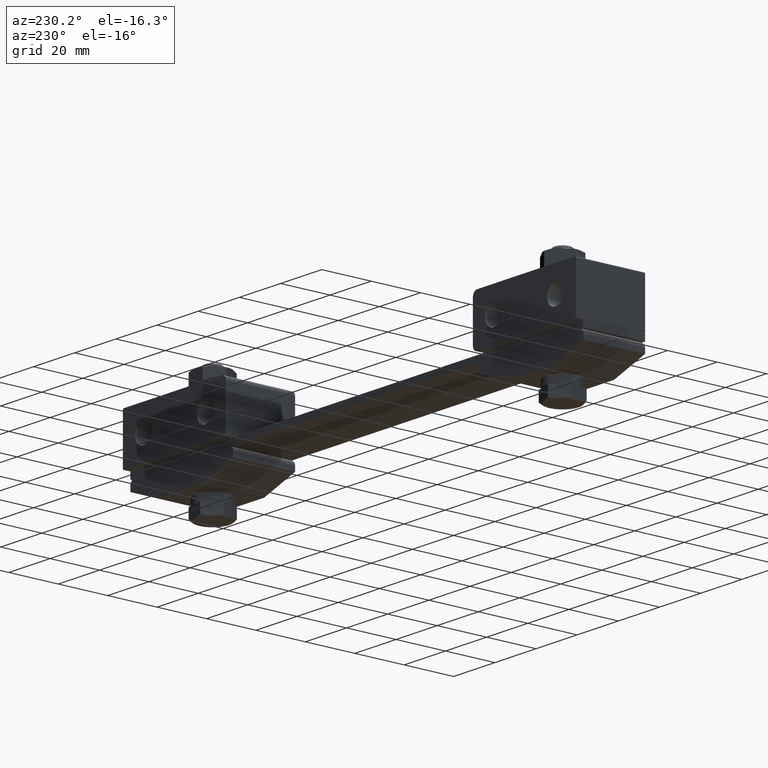
[diagram: clean part render]
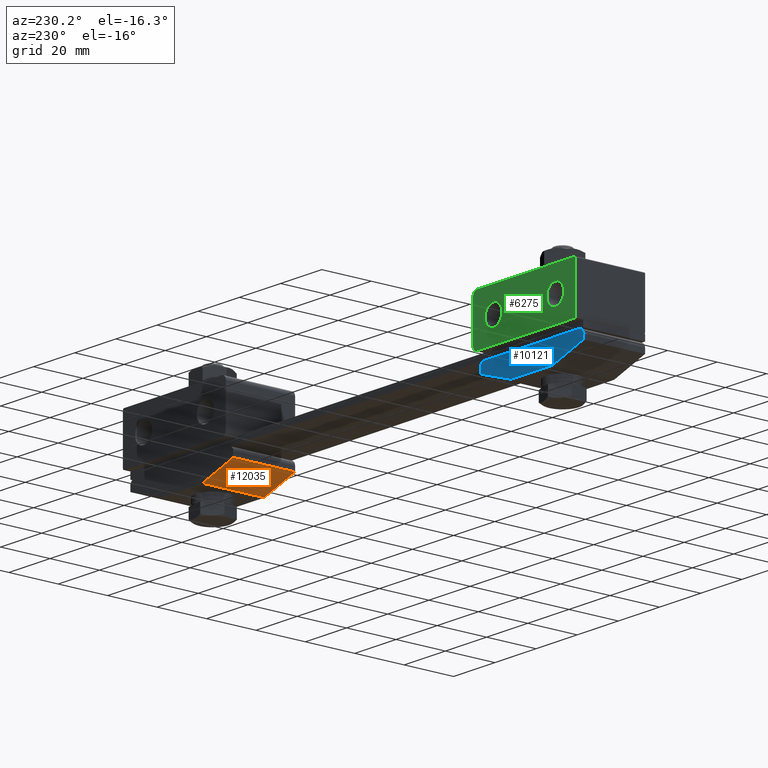
[diagram: same view with three faces highlighted in distinct colors, each labeled with its STEP entity id]
A machine part, auxiliary view with three faces highlighted in distinct colors.
Their STEP definitions:

[orange] entity #12035 — the highlighted planar face has unit normal (0.3162, 0, 0.9487).
#771 = VERTEX_POINT ( 'NONE', #1650 ) ;
#798 = CARTESIAN_POINT ( 'NONE',  ( 60.00000000000000000, -12.50000000000000000, -4.000000000000000000 ) ) ;
#914 = VECTOR ( 'NONE', #7214, 999.9999999999998900 ) ;
#1408 = PLANE ( 'NONE',  #8051 ) ;
#1477 = CARTESIAN_POINT ( 'NONE',  ( 75.00000000000000000, -14.00000000000000000, -9.000000000000000000 ) ) ;
#1650 = CARTESIAN_POINT ( 'NONE',  ( 60.00000000000000000, 12.50000000000000000, -4.000000000000000000 ) ) ;
#2160 = DIRECTION ( 'NONE',  ( 0.0000000000000000000, 1.000000000000000000, 0.0000000000000000000 ) ) ;
#2979 = DIRECTION ( 'NONE',  ( 0.9486832980505138800, 0.0000000000000000000, -0.3162277660168380000 ) ) ;
#3636 = EDGE_CURVE ( 'NONE', #9790, #14018, #14854, .T. ) ;
#3660 = DIRECTION ( 'NONE',  ( 0.0000000000000000000, 1.000000000000000000, 0.0000000000000000000 ) ) ;
#4072 = DIRECTION ( 'NONE',  ( -0.9486832980505137700, 0.0000000000000000000, 0.3162277660168380000 ) ) ;
#5417 = CARTESIAN_POINT ( 'NONE',  ( 75.00000000000000000, -12.50000000000000000, -9.000000000000000000 ) ) ;
#5857 = VECTOR ( 'NONE', #3660, 1000.000000000000000 ) ;
#7214 = DIRECTION ( 'NONE',  ( 0.9486832980505137700, 0.0000000000000000000, -0.3162277660168380000 ) ) ;
#7246 = ORIENTED_EDGE ( 'NONE', *, *, #13787, .F. ) ;
#7907 = EDGE_CURVE ( 'NONE', #8012, #771, #14209, .T. ) ;
#8012 = VERTEX_POINT ( 'NONE', #798 ) ;
#8051 = AXIS2_PLACEMENT_3D ( 'NONE', #1477, #18767, #2979 ) ;
#8525 = CARTESIAN_POINT ( 'NONE',  ( 58.79999999999999700, 12.50000000000000000, -3.600000000000000100 ) ) ;
#9790 = VERTEX_POINT ( 'NONE', #10771 ) ;
#10771 = CARTESIAN_POINT ( 'NONE',  ( 75.00000000000000000, -12.50000000000000000, -9.000000000000000000 ) ) ;
#11459 = CARTESIAN_POINT ( 'NONE',  ( 60.00000000000000000, -14.00000000000000000, -4.000000000000000000 ) ) ;
#11676 = EDGE_LOOP ( 'NONE', ( #18672, #13573, #15158, #7246 ) ) ;
#12035 = ADVANCED_FACE ( 'NONE', ( #13690 ), #1408, .F. ) ;
#12063 = LINE ( 'NONE', #8525, #13770 ) ;
#13556 = CARTESIAN_POINT ( 'NONE',  ( 58.79999999999999700, -12.50000000000000000, -3.600000000000000100 ) ) ;
#13573 = ORIENTED_EDGE ( 'NONE', *, *, #15281, .F. ) ;
#13690 = FACE_OUTER_BOUND ( 'NONE', #11676, .T. ) ;
#13770 = VECTOR ( 'NONE', #4072, 999.9999999999998900 ) ;
#13787 = EDGE_CURVE ( 'NONE', #8012, #9790, #16294, .T. ) ;
#14018 = VERTEX_POINT ( 'NONE', #17323 ) ;
#14209 = LINE ( 'NONE', #11459, #5857 ) ;
#14854 = LINE ( 'NONE', #5417, #15340 ) ;
#15158 = ORIENTED_EDGE ( 'NONE', *, *, #3636, .F. ) ;
#15281 = EDGE_CURVE ( 'NONE', #14018, #771, #12063, .T. ) ;
#15340 = VECTOR ( 'NONE', #2160, 1000.000000000000000 ) ;
#16294 = LINE ( 'NONE', #13556, #914 ) ;
#17323 = CARTESIAN_POINT ( 'NONE',  ( 75.00000000000000000, 12.50000000000000000, -9.000000000000000000 ) ) ;
#18672 = ORIENTED_EDGE ( 'NONE', *, *, #7907, .T. ) ;
#18767 = DIRECTION ( 'NONE',  ( 0.3162277660168380000, 0.0000000000000000000, 0.9486832980505138800 ) ) ;

[blue] entity #10121 — the highlighted planar face has unit normal (0, -1, 0).
#11 = CARTESIAN_POINT ( 'NONE',  ( -110.0000000000000000, 12.50000000000000000, -9.000000000000000000 ) ) ;
#200 = LINE ( 'NONE', #10910, #7428 ) ;
#311 = CARTESIAN_POINT ( 'NONE',  ( -110.0000000000000000, 12.50000000000000000, 0.0000000000000000000 ) ) ;
#519 = CARTESIAN_POINT ( 'NONE',  ( -110.0000000000000000, 12.50000000000000000, -4.000000000000000000 ) ) ;
#741 = ORIENTED_EDGE ( 'NONE', *, *, #3128, .F. ) ;
#1005 = DIRECTION ( 'NONE',  ( 0.0000000000000000000, 0.0000000000000000000, -1.000000000000000000 ) ) ;
#2238 = EDGE_CURVE ( 'NONE', #15018, #8568, #12202, .T. ) ;
#2322 = ORIENTED_EDGE ( 'NONE', *, *, #19930, .T. ) ;
#2412 = CARTESIAN_POINT ( 'NONE',  ( -95.00000000000000000, 12.50000000000000000, -9.000000000000000000 ) ) ;
#2477 = ORIENTED_EDGE ( 'NONE', *, *, #16836, .F. ) ;
#2694 = CARTESIAN_POINT ( 'NONE',  ( -110.0000000000000000, 12.50000000000000000, 0.0000000000000000000 ) ) ;
#2743 = CARTESIAN_POINT ( 'NONE',  ( -60.00000000000000000, 12.50000000000000000, -4.000000000000000000 ) ) ;
#2826 = VERTEX_POINT ( 'NONE', #2412 ) ;
#3097 = DIRECTION ( 'NONE',  ( -0.9486832980505137700, 0.0000000000000000000, 0.3162277660168380000 ) ) ;
#3128 = EDGE_CURVE ( 'NONE', #11429, #19155, #19283, .T. ) ;
#3638 = CIRCLE ( 'NONE', #17883, 2.000000000000000000 ) ;
#3933 = CARTESIAN_POINT ( 'NONE',  ( -75.00000000000000000, 12.50000000000000000, -9.000000000000000000 ) ) ;
#4467 = EDGE_CURVE ( 'NONE', #2826, #19155, #200, .T. ) ;
#5245 = CIRCLE ( 'NONE', #16768, 2.000000000000000000 ) ;
#5390 = CARTESIAN_POINT ( 'NONE',  ( -108.0000000000000000, 12.50000000000000000, 0.0000000000000000000 ) ) ;
#5635 = DIRECTION ( 'NONE',  ( 0.0000000000000000000, 0.0000000000000000000, -1.000000000000000000 ) ) ;
#6249 = VECTOR ( 'NONE', #1005, 1000.000000000000000 ) ;
#6274 = CARTESIAN_POINT ( 'NONE',  ( -60.00000000000000000, 12.50000000000000000, -2.000000000000000000 ) ) ;
#6990 = CARTESIAN_POINT ( 'NONE',  ( -108.0000000000000000, 12.50000000000000000, -2.000000000000000000 ) ) ;
#7334 = VECTOR ( 'NONE', #17625, 999.9999999999998900 ) ;
#7428 = VECTOR ( 'NONE', #3097, 999.9999999999998900 ) ;
#7720 = EDGE_CURVE ( 'NONE', #19825, #2826, #9770, .T. ) ;
#7747 = CARTESIAN_POINT ( 'NONE',  ( -110.0000000000000000, 12.50000000000000000, -2.000000000000000000 ) ) ;
#8088 = EDGE_CURVE ( 'NONE', #11429, #10280, #3638, .T. ) ;
#8568 = VERTEX_POINT ( 'NONE', #2743 ) ;
#8781 = DIRECTION ( 'NONE',  ( -0.0000000000000000000, 1.000000000000000000, -0.0000000000000000000 ) ) ;
#9286 = EDGE_LOOP ( 'NONE', ( #2477, #2322, #14366, #10932, #16230, #12239, #741, #19700 ) ) ;
#9300 = LINE ( 'NONE', #17754, #7334 ) ;
#9720 = VECTOR ( 'NONE', #20144, 1000.000000000000000 ) ;
#9770 = LINE ( 'NONE', #11, #20095 ) ;
#10121 = ADVANCED_FACE ( 'NONE', ( #14750 ), #16694, .F. ) ;
#10280 = VERTEX_POINT ( 'NONE', #5390 ) ;
#10322 = EDGE_CURVE ( 'NONE', #8568, #19825, #9300, .T. ) ;
#10329 = CARTESIAN_POINT ( 'NONE',  ( -62.00000000000000000, 12.50000000000000000, 0.0000000000000000000 ) ) ;
#10433 = CARTESIAN_POINT ( 'NONE',  ( -62.00000000000000000, 12.50000000000000000, -2.000000000000000000 ) ) ;
#10503 = VECTOR ( 'NONE', #16107, 1000.000000000000000 ) ;
#10841 = DIRECTION ( 'NONE',  ( -1.000000000000000000, 0.0000000000000000000, 0.0000000000000000000 ) ) ;
#10910 = CARTESIAN_POINT ( 'NONE',  ( -111.1999999999999900, 12.50000000000000000, -3.600000000000000100 ) ) ;
#10932 = ORIENTED_EDGE ( 'NONE', *, *, #10322, .T. ) ;
#11429 = VERTEX_POINT ( 'NONE', #7747 ) ;
#11736 = DIRECTION ( 'NONE',  ( 0.0000000000000000000, 0.0000000000000000000, -1.000000000000000000 ) ) ;
#11877 = DIRECTION ( 'NONE',  ( 0.0000000000000000000, -1.000000000000000000, 0.0000000000000000000 ) ) ;
#11901 = VERTEX_POINT ( 'NONE', #10329 ) ;
#12202 = LINE ( 'NONE', #12442, #9720 ) ;
#12239 = ORIENTED_EDGE ( 'NONE', *, *, #4467, .T. ) ;
#12442 = CARTESIAN_POINT ( 'NONE',  ( -60.00000000000000000, 12.50000000000000000, 0.0000000000000000000 ) ) ;
#13697 = AXIS2_PLACEMENT_3D ( 'NONE', #2694, #11877, #5635 ) ;
#14366 = ORIENTED_EDGE ( 'NONE', *, *, #2238, .T. ) ;
#14750 = FACE_OUTER_BOUND ( 'NONE', #9286, .T. ) ;
#14921 = CARTESIAN_POINT ( 'NONE',  ( -110.0000000000000000, 12.50000000000000000, 0.0000000000000000000 ) ) ;
#14985 = DIRECTION ( 'NONE',  ( 0.0000000000000000000, 0.0000000000000000000, -1.000000000000000000 ) ) ;
#15018 = VERTEX_POINT ( 'NONE', #6274 ) ;
#16107 = DIRECTION ( 'NONE',  ( -1.000000000000000000, 0.0000000000000000000, 0.0000000000000000000 ) ) ;
#16230 = ORIENTED_EDGE ( 'NONE', *, *, #7720, .T. ) ;
#16694 = PLANE ( 'NONE',  #13697 ) ;
#16768 = AXIS2_PLACEMENT_3D ( 'NONE', #10433, #8781, #14985 ) ;
#16836 = EDGE_CURVE ( 'NONE', #11901, #10280, #16906, .T. ) ;
#16906 = LINE ( 'NONE', #311, #10503 ) ;
#17625 = DIRECTION ( 'NONE',  ( -0.9486832980505137700, 0.0000000000000000000, -0.3162277660168380000 ) ) ;
#17754 = CARTESIAN_POINT ( 'NONE',  ( -103.8000000000000000, 12.50000000000000000, -18.59999999999999800 ) ) ;
#17883 = AXIS2_PLACEMENT_3D ( 'NONE', #6990, #19591, #11736 ) ;
#19155 = VERTEX_POINT ( 'NONE', #519 ) ;
#19283 = LINE ( 'NONE', #14921, #6249 ) ;
#19591 = DIRECTION ( 'NONE',  ( -0.0000000000000000000, 1.000000000000000000, -0.0000000000000000000 ) ) ;
#19700 = ORIENTED_EDGE ( 'NONE', *, *, #8088, .T. ) ;
#19825 = VERTEX_POINT ( 'NONE', #3933 ) ;
#19930 = EDGE_CURVE ( 'NONE', #11901, #15018, #5245, .T. ) ;
#20095 = VECTOR ( 'NONE', #10841, 1000.000000000000000 ) ;
#20144 = DIRECTION ( 'NONE',  ( 0.0000000000000000000, 0.0000000000000000000, -1.000000000000000000 ) ) ;

[green] entity #6275 — the highlighted planar face has unit normal (0, -1, 0).
#716 = AXIS2_PLACEMENT_3D ( 'NONE', #9207, #2853, #18649 ) ;
#854 = CIRCLE ( 'NONE', #11110, 0.5000000000000004400 ) ;
#1101 = EDGE_CURVE ( 'NONE', #13717, #14317, #9779, .T. ) ;
#1206 = VERTEX_POINT ( 'NONE', #10490 ) ;
#1778 = ORIENTED_EDGE ( 'NONE', *, *, #11926, .T. ) ;
#2784 = DIRECTION ( 'NONE',  ( 0.0000000000000000000, 0.0000000000000000000, 1.000000000000000000 ) ) ;
#2807 = VECTOR ( 'NONE', #8395, 1000.000000000000000 ) ;
#2853 = DIRECTION ( 'NONE',  ( 0.0000000000000000000, -1.000000000000000000, 0.0000000000000000000 ) ) ;
#2864 = AXIS2_PLACEMENT_3D ( 'NONE', #17257, #3034, #2972 ) ;
#2924 = PLANE ( 'NONE',  #716 ) ;
#2972 = DIRECTION ( 'NONE',  ( 0.0000000000000000000, 0.0000000000000000000, 1.000000000000000000 ) ) ;
#3034 = DIRECTION ( 'NONE',  ( -0.0000000000000000000, 1.000000000000000000, -0.0000000000000000000 ) ) ;
#3069 = EDGE_LOOP ( 'NONE', ( #5337, #18905 ) ) ;
#3447 = FACE_OUTER_BOUND ( 'NONE', #10834, .T. ) ;
#3591 = DIRECTION ( 'NONE',  ( 0.0000000000000000000, -1.000000000000000000, 0.0000000000000000000 ) ) ;
#4120 = CARTESIAN_POINT ( 'NONE',  ( -70.00000000000000000, 15.50000000000000000, 8.400000000000000400 ) ) ;
#4153 = CARTESIAN_POINT ( 'NONE',  ( -100.0000000000000000, 15.50000000000000000, 16.60000000000000100 ) ) ;
#4225 = DIRECTION ( 'NONE',  ( 0.0000000000000000000, -1.000000000000000000, 0.0000000000000000000 ) ) ;
#4666 = FACE_BOUND ( 'NONE', #3069, .T. ) ;
#4959 = ORIENTED_EDGE ( 'NONE', *, *, #13702, .F. ) ;
#5220 = EDGE_CURVE ( 'NONE', #20090, #9446, #16017, .T. ) ;
#5337 = ORIENTED_EDGE ( 'NONE', *, *, #1101, .T. ) ;
#5381 = DIRECTION ( 'NONE',  ( 0.0000000000000000000, 0.0000000000000000000, 1.000000000000000000 ) ) ;
#5406 = DIRECTION ( 'NONE',  ( 0.0000000000000000000, -1.000000000000000000, 0.0000000000000000000 ) ) ;
#5436 = DIRECTION ( 'NONE',  ( 0.0000000000000000000, 0.0000000000000000000, 1.000000000000000000 ) ) ;
#5712 = ORIENTED_EDGE ( 'NONE', *, *, #19350, .T. ) ;
#5843 = VERTEX_POINT ( 'NONE', #12270 ) ;
#5959 = ORIENTED_EDGE ( 'NONE', *, *, #13170, .T. ) ;
#6041 = EDGE_CURVE ( 'NONE', #14317, #13717, #17466, .T. ) ;
#6240 = LINE ( 'NONE', #14963, #13867 ) ;
#6275 = ADVANCED_FACE ( 'NONE', ( #12036, #4666, #3447 ), #2924, .F. ) ;
#6628 = CARTESIAN_POINT ( 'NONE',  ( -109.5000000000000000, 15.50000000000000000, 3.000000000000000000 ) ) ;
#7099 = VERTEX_POINT ( 'NONE', #19596 ) ;
#7290 = CARTESIAN_POINT ( 'NONE',  ( -62.00000000000000000, 15.50000000000000000, 4.500000000000000000 ) ) ;
#7392 = CARTESIAN_POINT ( 'NONE',  ( -100.0000000000000000, 15.50000000000000000, 8.400000000000000400 ) ) ;
#7420 = DIRECTION ( 'NONE',  ( -0.0000000000000000000, 1.000000000000000000, -0.0000000000000000000 ) ) ;
#7463 = ORIENTED_EDGE ( 'NONE', *, *, #7717, .T. ) ;
#7717 = EDGE_CURVE ( 'NONE', #1206, #20090, #13239, .T. ) ;
#7805 = CARTESIAN_POINT ( 'NONE',  ( -60.00000000000000000, 15.50000000000000000, 20.50000000000000000 ) ) ;
#7947 = CARTESIAN_POINT ( 'NONE',  ( -60.00000000000000000, 15.50000000000000000, 4.500000000000000000 ) ) ;
#8312 = CARTESIAN_POINT ( 'NONE',  ( -70.00000000000000000, 15.50000000000000000, 12.50000000000000000 ) ) ;
#8395 = DIRECTION ( 'NONE',  ( -1.000000000000000000, 0.0000000000000000000, 0.0000000000000000000 ) ) ;
#8426 = CARTESIAN_POINT ( 'NONE',  ( -110.0000000000000000, 15.50000000000000000, 22.50000000000000000 ) ) ;
#8477 = DIRECTION ( 'NONE',  ( 0.0000000000000000000, 0.0000000000000000000, 1.000000000000000000 ) ) ;
#8776 = DIRECTION ( 'NONE',  ( 0.0000000000000000000, -1.000000000000000000, 0.0000000000000000000 ) ) ;
#9035 = ORIENTED_EDGE ( 'NONE', *, *, #10553, .T. ) ;
#9207 = CARTESIAN_POINT ( 'NONE',  ( -60.00000000000000000, 15.50000000000000000, 22.50000000000000000 ) ) ;
#9446 = VERTEX_POINT ( 'NONE', #7947 ) ;
#9626 = AXIS2_PLACEMENT_3D ( 'NONE', #6628, #17905, #8477 ) ;
#9779 = CIRCLE ( 'NONE', #12926, 4.099999999999999600 ) ;
#10115 = VECTOR ( 'NONE', #17198, 1000.000000000000000 ) ;
#10490 = CARTESIAN_POINT ( 'NONE',  ( -62.00000000000000000, 15.50000000000000000, 22.50000000000000000 ) ) ;
#10553 = EDGE_CURVE ( 'NONE', #9446, #12876, #12030, .T. ) ;
#10834 = EDGE_LOOP ( 'NONE', ( #5712, #5959, #14895, #20176, #4959, #7463, #12163, #9035 ) ) ;
#11110 = AXIS2_PLACEMENT_3D ( 'NONE', #17809, #14790, #5381 ) ;
#11584 = DIRECTION ( 'NONE',  ( 0.0000000000000000000, 0.0000000000000000000, -1.000000000000000000 ) ) ;
#11850 = AXIS2_PLACEMENT_3D ( 'NONE', #7290, #7420, #18437 ) ;
#11926 = EDGE_CURVE ( 'NONE', #16594, #11967, #12710, .T. ) ;
#11943 = ORIENTED_EDGE ( 'NONE', *, *, #19701, .T. ) ;
#11967 = VERTEX_POINT ( 'NONE', #15138 ) ;
#12030 = CIRCLE ( 'NONE', #11850, 2.000000000000000000 ) ;
#12036 = FACE_BOUND ( 'NONE', #14508, .T. ) ;
#12163 = ORIENTED_EDGE ( 'NONE', *, *, #5220, .T. ) ;
#12270 = CARTESIAN_POINT ( 'NONE',  ( -109.5000000000000000, 15.50000000000000000, 22.50000000000000000 ) ) ;
#12425 = CARTESIAN_POINT ( 'NONE',  ( -62.00000000000000000, 15.50000000000000000, 2.500000000000000000 ) ) ;
#12710 = CIRCLE ( 'NONE', #17934, 4.099999999999999600 ) ;
#12876 = VERTEX_POINT ( 'NONE', #12425 ) ;
#12926 = AXIS2_PLACEMENT_3D ( 'NONE', #13274, #8776, #5436 ) ;
#13086 = EDGE_CURVE ( 'NONE', #7099, #17325, #15348, .T. ) ;
#13170 = EDGE_CURVE ( 'NONE', #16195, #17325, #13878, .T. ) ;
#13239 = CIRCLE ( 'NONE', #2864, 1.999999999999998200 ) ;
#13274 = CARTESIAN_POINT ( 'NONE',  ( -100.0000000000000000, 15.50000000000000000, 12.50000000000000000 ) ) ;
#13702 = EDGE_CURVE ( 'NONE', #1206, #5843, #16058, .T. ) ;
#13717 = VERTEX_POINT ( 'NONE', #4153 ) ;
#13764 = CARTESIAN_POINT ( 'NONE',  ( -110.0000000000000000, 15.50000000000000000, 3.000000000000000000 ) ) ;
#13867 = VECTOR ( 'NONE', #18126, 1000.000000000000000 ) ;
#13878 = CIRCLE ( 'NONE', #9626, 0.5000000000000000000 ) ;
#14317 = VERTEX_POINT ( 'NONE', #7392 ) ;
#14508 = EDGE_LOOP ( 'NONE', ( #11943, #1778 ) ) ;
#14580 = DIRECTION ( 'NONE',  ( 0.0000000000000000000, 0.0000000000000000000, 1.000000000000000000 ) ) ;
#14790 = DIRECTION ( 'NONE',  ( -0.0000000000000000000, 1.000000000000000000, -0.0000000000000000000 ) ) ;
#14895 = ORIENTED_EDGE ( 'NONE', *, *, #13086, .F. ) ;
#14963 = CARTESIAN_POINT ( 'NONE',  ( -60.00000000000000000, 15.50000000000000000, 2.500000000000000000 ) ) ;
#15138 = CARTESIAN_POINT ( 'NONE',  ( -70.00000000000000000, 15.50000000000000000, 16.60000000000000100 ) ) ;
#15250 = EDGE_CURVE ( 'NONE', #7099, #5843, #854, .T. ) ;
#15319 = CIRCLE ( 'NONE', #16216, 4.099999999999999600 ) ;
#15348 = LINE ( 'NONE', #8426, #18303 ) ;
#15605 = CARTESIAN_POINT ( 'NONE',  ( -60.00000000000000000, 15.50000000000000000, 22.50000000000000000 ) ) ;
#16017 = LINE ( 'NONE', #15605, #10115 ) ;
#16058 = LINE ( 'NONE', #16229, #2807 ) ;
#16195 = VERTEX_POINT ( 'NONE', #19687 ) ;
#16216 = AXIS2_PLACEMENT_3D ( 'NONE', #8312, #3591, #14580 ) ;
#16229 = CARTESIAN_POINT ( 'NONE',  ( -60.00000000000000000, 15.50000000000000000, 22.50000000000000000 ) ) ;
#16316 = CARTESIAN_POINT ( 'NONE',  ( -100.0000000000000000, 15.50000000000000000, 12.50000000000000000 ) ) ;
#16594 = VERTEX_POINT ( 'NONE', #4120 ) ;
#17198 = DIRECTION ( 'NONE',  ( 0.0000000000000000000, 0.0000000000000000000, -1.000000000000000000 ) ) ;
#17257 = CARTESIAN_POINT ( 'NONE',  ( -62.00000000000000000, 15.50000000000000000, 20.50000000000000000 ) ) ;
#17325 = VERTEX_POINT ( 'NONE', #13764 ) ;
#17466 = CIRCLE ( 'NONE', #19395, 4.099999999999999600 ) ;
#17809 = CARTESIAN_POINT ( 'NONE',  ( -109.5000000000000000, 15.50000000000000000, 22.00000000000000000 ) ) ;
#17905 = DIRECTION ( 'NONE',  ( -0.0000000000000000000, 1.000000000000000000, -0.0000000000000000000 ) ) ;
#17906 = DIRECTION ( 'NONE',  ( 0.0000000000000000000, 0.0000000000000000000, 1.000000000000000000 ) ) ;
#17934 = AXIS2_PLACEMENT_3D ( 'NONE', #18235, #4225, #2784 ) ;
#18126 = DIRECTION ( 'NONE',  ( -1.000000000000000000, 0.0000000000000000000, 0.0000000000000000000 ) ) ;
#18235 = CARTESIAN_POINT ( 'NONE',  ( -70.00000000000000000, 15.50000000000000000, 12.50000000000000000 ) ) ;
#18303 = VECTOR ( 'NONE', #11584, 1000.000000000000000 ) ;
#18437 = DIRECTION ( 'NONE',  ( 0.0000000000000000000, 0.0000000000000000000, 1.000000000000000000 ) ) ;
#18649 = DIRECTION ( 'NONE',  ( 0.0000000000000000000, 0.0000000000000000000, 1.000000000000000000 ) ) ;
#18905 = ORIENTED_EDGE ( 'NONE', *, *, #6041, .T. ) ;
#19350 = EDGE_CURVE ( 'NONE', #12876, #16195, #6240, .T. ) ;
#19395 = AXIS2_PLACEMENT_3D ( 'NONE', #16316, #5406, #17906 ) ;
#19596 = CARTESIAN_POINT ( 'NONE',  ( -110.0000000000000000, 15.50000000000000000, 22.00000000000000000 ) ) ;
#19687 = CARTESIAN_POINT ( 'NONE',  ( -109.5000000000000000, 15.50000000000000000, 2.500000000000000000 ) ) ;
#19701 = EDGE_CURVE ( 'NONE', #11967, #16594, #15319, .T. ) ;
#20090 = VERTEX_POINT ( 'NONE', #7805 ) ;
#20176 = ORIENTED_EDGE ( 'NONE', *, *, #15250, .T. ) ;